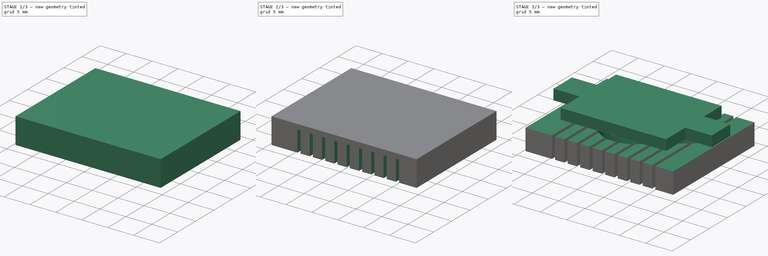
[diagram: build sequence overview — one tinted view per stage of 3, left to right]
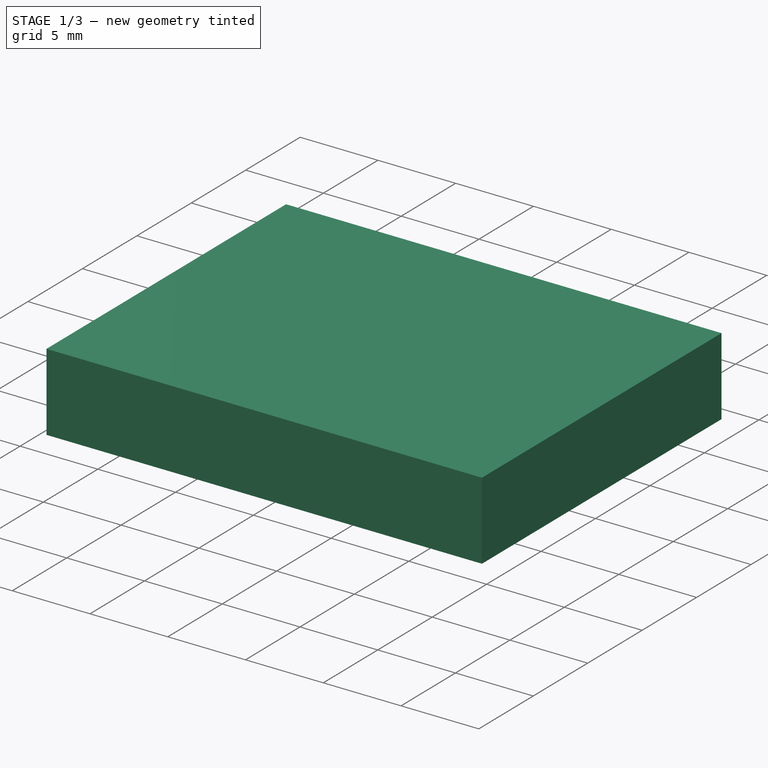
[diagram: stage 1 of 3 — iso view after this stage's code; geometry added in this stage tinted green]
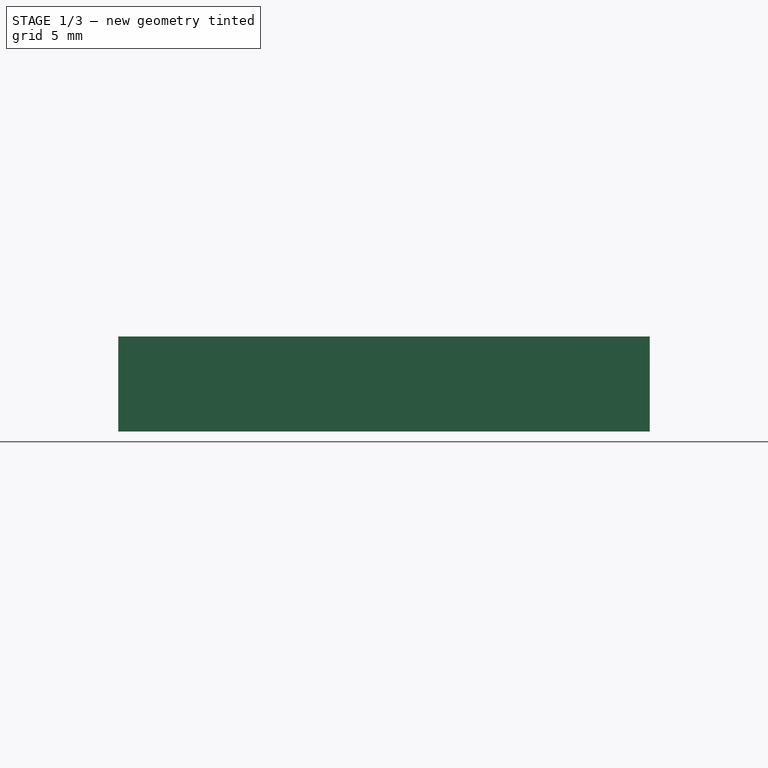
[diagram: stage 1 of 3 — front view after this stage's code; geometry added in this stage tinted green]
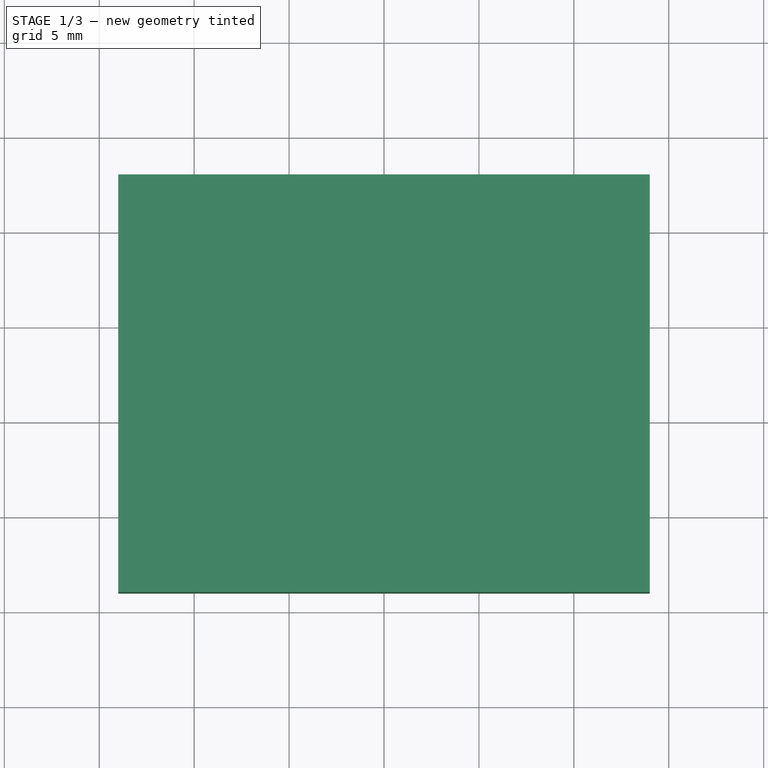
[diagram: stage 1 of 3 — top view after this stage's code; geometry added in this stage tinted green]
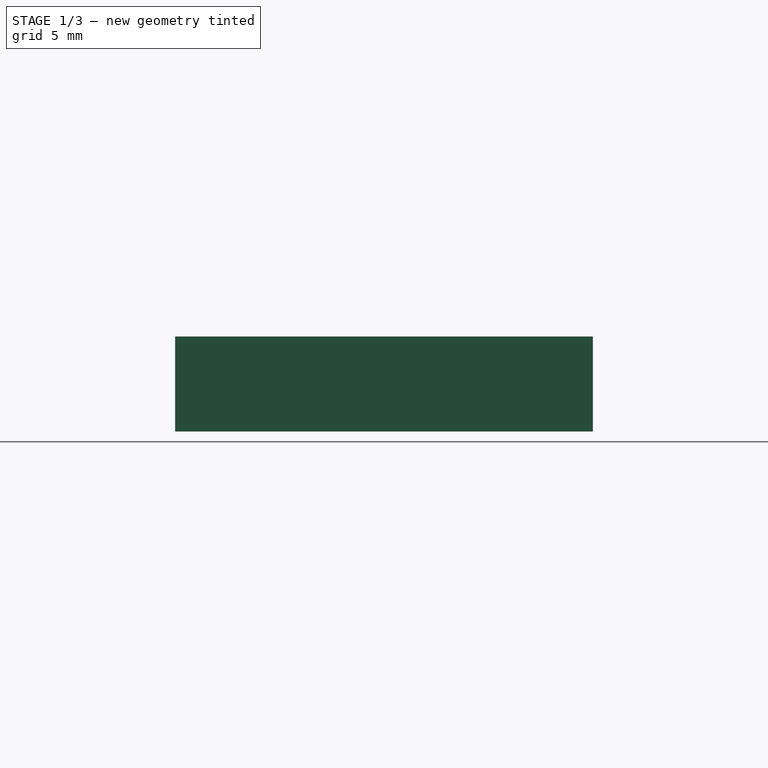
[diagram: stage 1 of 3 — right view after this stage's code; geometry added in this stage tinted green]
FCSTD DOCUMENT  (FreeCAD 0.18.1R)
Label: Slice_anchor_2.3_1.6_diasep
License: All rights reserved
LicenseURL: http://en.wikipedia.org/wiki/All_rights_reserved
objects: Sketcher::SketchObject×7, PartDesign::Pocket×4, PartDesign::Pad×2, PartDesign::LinearPattern×1, PartDesign::Body×1, App::MeasureDistance×1
note: 21 computed .brp shape members not serialized (recipe doc carries the construction recipe); baked Part::Feature solids carry a one-line shape summary decoded from their .brp

FEATURE [Sketcher::SketchObject] Sketch  label="main platform001"
  MapMode = 5
  Support = -> [XY_Plane]
  sketch-geometry (4):
    g0: LineSegment StartX=1 StartY=1 StartZ=0 EndX=29 EndY=1 EndZ=0
    g1: LineSegment StartX=29 StartY=1 StartZ=0 EndX=29 EndY=23 EndZ=0
    g2: LineSegment StartX=29 StartY=23 StartZ=0 EndX=1 EndY=23 EndZ=0
    g3: LineSegment StartX=1 StartY=23 StartZ=0 EndX=1 EndY=1 EndZ=0
  constraints (12):
    c: Coincident(g0,g1)
    c: Coincident(g1,g2)
    c: Coincident(g2,g3)
    c: Coincident(g3,g0)
    c: Horizontal(g0)
    c: Horizontal(g2)
    c: Vertical(g1)
    c: Vertical(g3)
    c: Distance(g3) = 22
    c: Distance(g0) = 28
    c: DistanceX(g-1,g0) = 1
    c: DistanceY(g-1,g0) = 1
FEATURE [Sketcher::SketchObject] Sketch001  label="main chamber001"
  MapMode = 5
  Support = -> [XY_Plane]
  sketch-geometry (8):
    g0: ArcOfCircle CenterX=15 CenterY=14.5 CenterZ=0 NormalX=0 NormalY=0 NormalZ=1 AngleXU=0 Radius=6 StartAngle=1.05337 EndAngle=2.10057
    g1: ArcOfCircle CenterX=15 CenterY=10.25 CenterZ=0 NormalX=0 NormalY=0 NormalZ=1 AngleXU=0 Radius=6 StartAngle=4.25121 EndAngle=5.29841
    g2: ArcOfCircle CenterX=5.75 CenterY=12.5 CenterZ=0 NormalX=0 NormalY=0 NormalZ=1 AngleXU=0 Radius=2 StartAngle=2.59976 EndAngle=3.64695
    g3: ArcOfCircle CenterX=24.25 CenterY=12.5 CenterZ=0 NormalX=0 NormalY=0 NormalZ=1 AngleXU=0 Radius=2 StartAngle=5.77782 EndAngle=6.82502
    g4: LineSegment StartX=11.968 StartY=19.6775 StartZ=0 EndX=4.03647 EndY=13.5314 EndZ=0
    g5: LineSegment StartX=4 StartY=11.5318 StartZ=0 EndX=12.33 EndY=4.87682 EndZ=0
    g6: LineSegment StartX=18.3183 StartY=5.25112 StartZ=0 EndX=26 EndY=11.5318 EndZ=0
    g7: LineSegment StartX=25.9635 StartY=13.5314 StartZ=0 EndX=17.9679 EndY=19.7146 EndZ=0
  constraints (27):
    c: DistanceX(g-1,g0) = 15
    c: Vertical(g0,g1)
    c: Radius(g0) = 6
    c: Equal(g0,g1)
    c: Angle(g0) = 1.0472
    c: Angle(g1) = 1.0472
    c: DistanceY(g1,g0) = 4.25
    c: DistanceY(g-1,g1) = 10.25
    c: DistanceX(g2,g3) = 18.5
    c: Radius(g2) = 2
    c: Equal(g2,g3)
    c: Angle(g3) = 1.0472
    c: Angle(g2) = 1.0472
    c: Horizontal(g3,g2)
    c: Horizontal(g2,g3)
    c: DistanceY(g-1,g2) = 12.5
    c: DistanceX(g-1,g2) = 5.75
    c: Coincident(g4,g0)
    c: Coincident(g4,g2)
    c: Coincident(g5,g2)
    c: Coincident(g5,g1)
    c: Coincident(g6,g1)
    c: Coincident(g6,g3)
    c: Coincident(g7,g3)
    c: Coincident(g7,g0)
    c: DistanceX(g-1,g1) = 12.33
    c: DistanceX(g-1,g2) = 4
FEATURE [PartDesign::Pad] Pad002  label="main platform"
  Length = 5
  Length2 = 100
  Profile = -> Sketch
  Type = 0
FEATURE [PartDesign::Pocket] Pocket001  label="main chamber"
  BaseFeature = -> Pad002
  Length = 0.8
  Length2 = 100
  Profile = -> Sketch001
  Reversed = true
  Type = 0
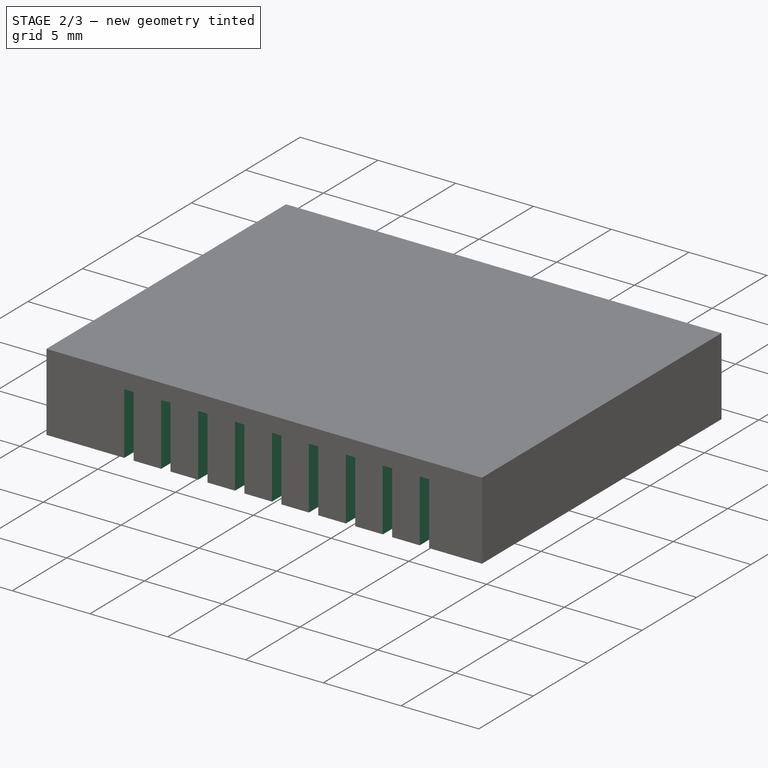
[diagram: stage 2 of 3 — iso view after this stage's code; geometry added in this stage tinted green]
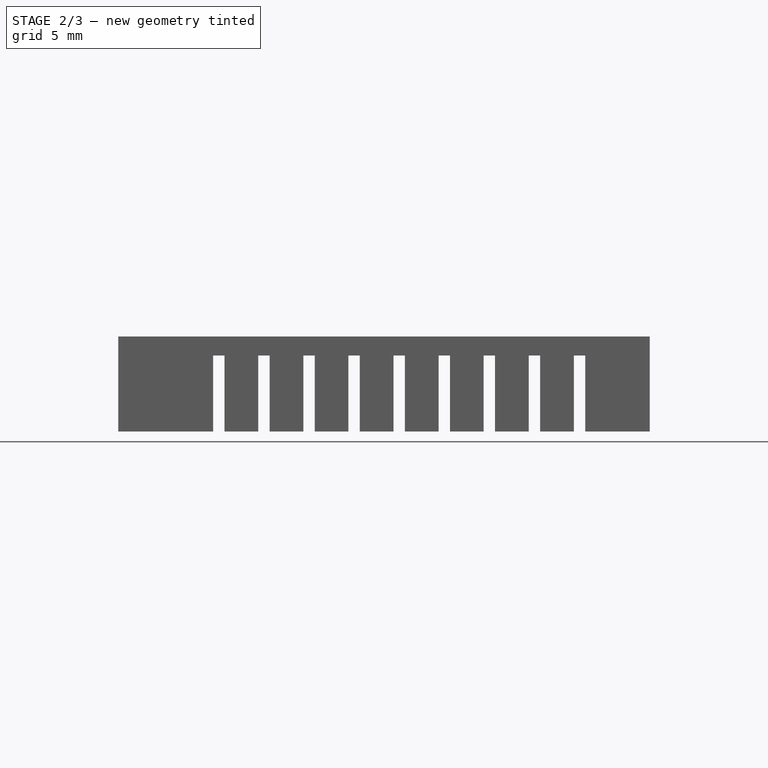
[diagram: stage 2 of 3 — front view after this stage's code; geometry added in this stage tinted green]
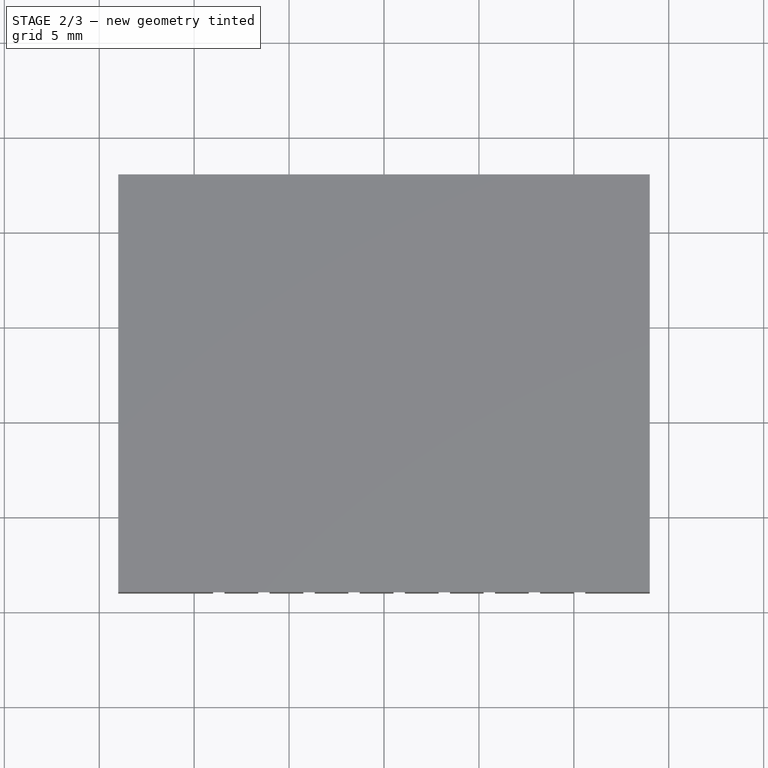
[diagram: stage 2 of 3 — top view after this stage's code; geometry added in this stage tinted green]
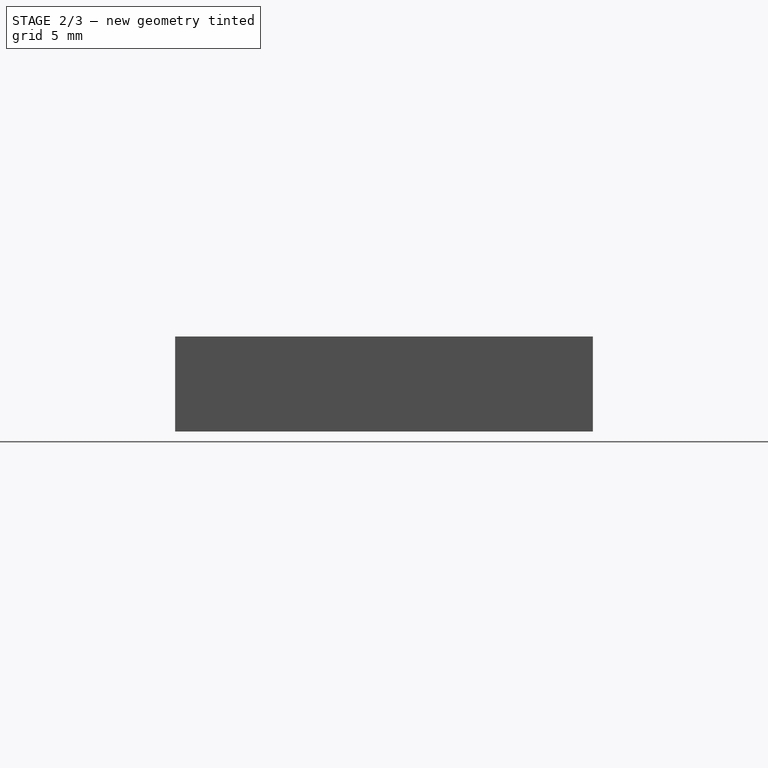
[diagram: stage 2 of 3 — right view after this stage's code; geometry added in this stage tinted green]
FEATURE [Sketcher::SketchObject] Sketch002
  MapMode = 5
  Support = -> [XY_Plane]
  sketch-geometry (4):
    g0: LineSegment StartX=6 StartY=23 StartZ=0 EndX=6.6 EndY=23 EndZ=0
    g1: LineSegment StartX=6.6 StartY=23 StartZ=0 EndX=6.6 EndY=0 EndZ=0
    g2: LineSegment StartX=6.6 StartY=0 StartZ=0 EndX=6 EndY=0 EndZ=0
    g3: LineSegment StartX=6 StartY=0 StartZ=0 EndX=6 EndY=23 EndZ=0
  constraints (12):
    c: Coincident(g0,g1)
    c: Coincident(g1,g2)
    c: Coincident(g2,g3)
    c: Coincident(g3,g0)
    c: Horizontal(g0)
    c: Horizontal(g2)
    c: Vertical(g1)
    c: Vertical(g3)
    c: DistanceX(g2,g1) = 0.6
    c: DistanceX(g-1,g2) = 6
    c: DistanceY(g-1,g2) = 0
    c: DistanceY(g-1,g0) = 23
FEATURE [PartDesign::Pocket] Pocket
  BaseFeature = -> Pocket001
  Length = 4
  Length2 = 100
  Profile = -> Sketch002
  Reversed = true
  Type = 0
FEATURE [PartDesign::LinearPattern] LinearPattern
  BaseFeature = -> Pocket
  Direction = -> X_Axis
  Length = 19
  Occurrences = 9
  Originals = -> [Pocket]
FEATURE [Sketcher::SketchObject] Sketch003  label="main chamber002"
  AttachmentOffset = pos=(0.5,0,4) rot=(0,1,0;0.785398rad)
  MapMode = 5
  Placement = pos=(0.5,0,4) rot=(0,1,0;0.785398rad)
  Support = -> [XY_Plane]
  sketch-geometry (8):
    g0: ArcOfCircle CenterX=15 CenterY=14 CenterZ=0 NormalX=0 NormalY=0 NormalZ=1 AngleXU=0 Radius=6 StartAngle=1.05366 EndAngle=2.10086
    g1: ArcOfCircle CenterX=15 CenterY=10.75 CenterZ=0 NormalX=0 NormalY=0 NormalZ=1 AngleXU=0 Radius=6 StartAngle=4.25121 EndAngle=5.29841
    g2: ArcOfCircle CenterX=5.75 CenterY=12.5 CenterZ=0 NormalX=0 NormalY=0 NormalZ=1 AngleXU=0 Radius=2 StartAngle=2.59976 EndAngle=3.64695
    g3: ArcOfCircle CenterX=24.25 CenterY=12.5 CenterZ=0 NormalX=0 NormalY=0 NormalZ=1 AngleXU=0 Radius=2 StartAngle=5.77782 EndAngle=6.82502
    g4: LineSegment StartX=11.9665 StartY=19.1767 StartZ=0 EndX=4.03647 EndY=13.5314 EndZ=0
    g5: LineSegment StartX=4 StartY=11.5318 StartZ=0 EndX=12.33 EndY=5.37682 EndZ=0
    g6: LineSegment StartX=18.3183 StartY=5.75112 StartZ=0 EndX=26 EndY=11.5318 EndZ=0
    g7: LineSegment StartX=25.9635 StartY=13.5314 StartZ=0 EndX=17.9664 EndY=19.2154 EndZ=0
  constraints (27):
    c: DistanceX(g-1,g0) = 15
    c: Vertical(g0,g1)
    c: Radius(g0) = 6
    c: Equal(g0,g1)
    c: Angle(g0) = 1.0472
    c: Angle(g1) = 1.0472
    c: DistanceY(g1,g0) = 3.25
    c: DistanceY(g-1,g1) = 10.75
    c: DistanceX(g2,g3) = 18.5
    c: Radius(g2) = 2
    c: Equal(g2,g3)
    c: Angle(g3) = 1.0472
    c: Angle(g2) = 1.0472
    c: Horizontal(g3,g2)
    c: Horizontal(g2,g3)
    c: DistanceY(g-1,g2) = 12.5
    c: DistanceX(g-1,g2) = 5.75
    c: Coincident(g4,g0)
    c: Coincident(g4,g2)
    c: Coincident(g5,g2)
    c: Coincident(g5,g1)
    c: Coincident(g6,g1)
    c: Coincident(g6,g3)
    c: Coincident(g7,g3)
    c: Coincident(g7,g0)
    c: DistanceX(g-1,g1) = 12.33
    c: DistanceX(g-1,g2) = 4
FEATURE [PartDesign::Pocket] Pocket002
  BaseFeature = -> LinearPattern
  Length = 3.5
  Length2 = 100
  Profile = -> Sketch003
  Reversed = true
  Type = 0
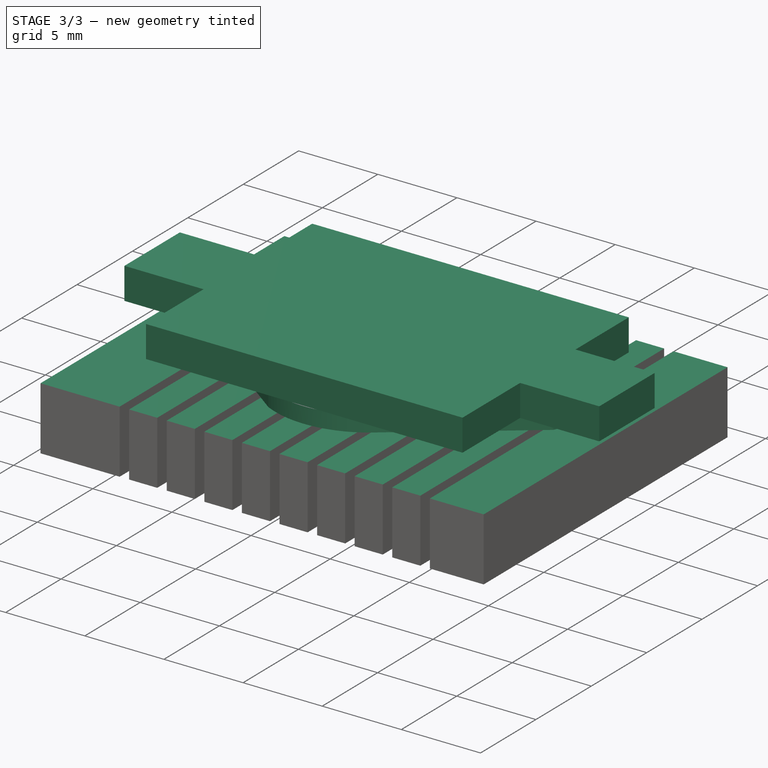
[diagram: stage 3 of 3 — iso view after this stage's code; geometry added in this stage tinted green]
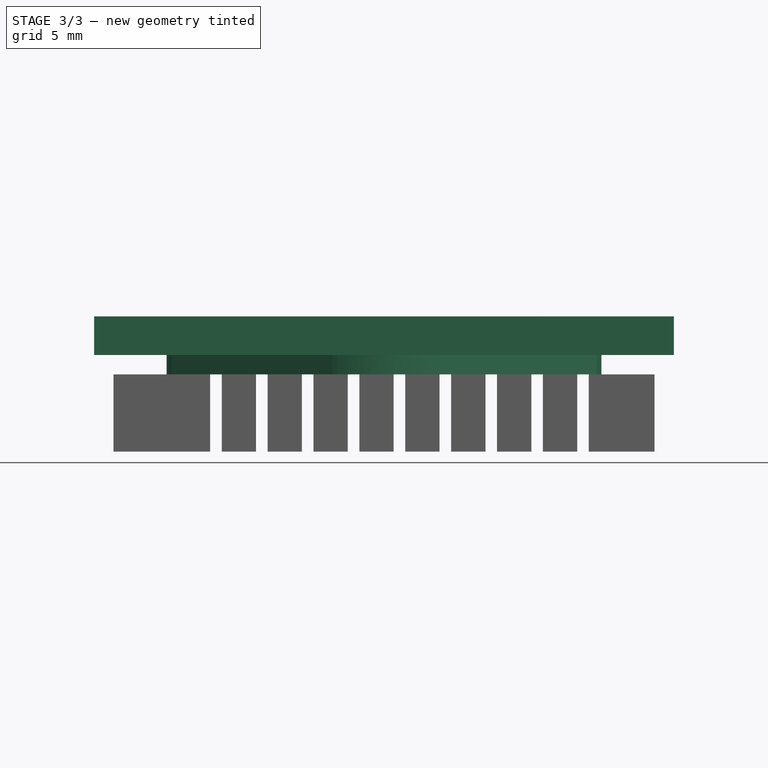
[diagram: stage 3 of 3 — front view after this stage's code; geometry added in this stage tinted green]
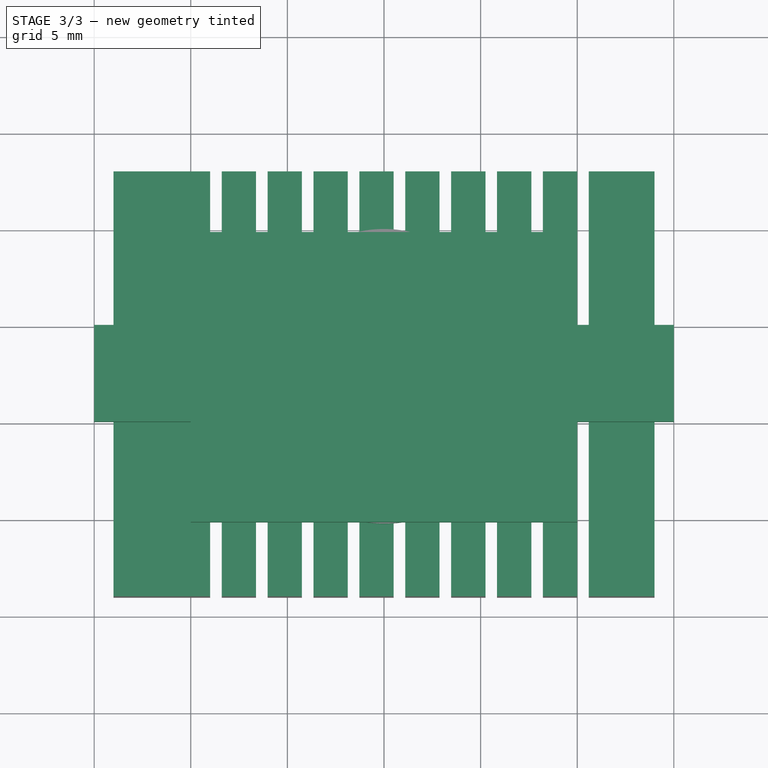
[diagram: stage 3 of 3 — top view after this stage's code; geometry added in this stage tinted green]
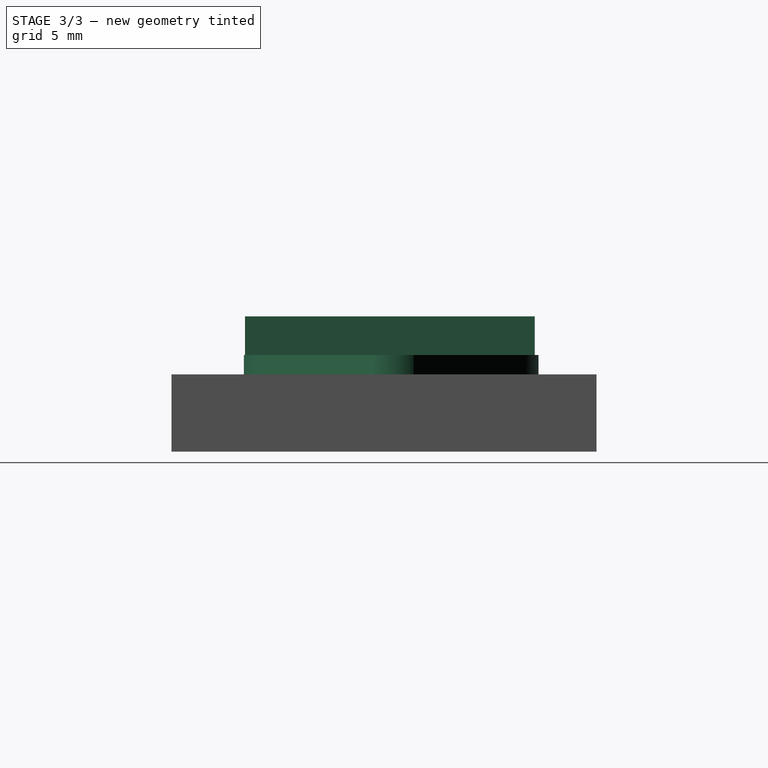
[diagram: stage 3 of 3 — right view after this stage's code; geometry added in this stage tinted green]
FEATURE [Sketcher::SketchObject] Sketch004
  AttachmentOffset = pos=(0,0,5) rot=(0,0,1;0rad)
  MapMode = 5
  Placement = pos=(0,0,5) rot=(0,0,1;0rad)
  Support = -> [XY_Plane]
  sketch-geometry (12):
    g0: LineSegment StartX=5 StartY=19.805 StartZ=0 EndX=25 EndY=19.805 EndZ=0
    g1: LineSegment StartX=25 StartY=4.805 StartZ=0 EndX=5 EndY=4.805 EndZ=0
    g2: LineSegment StartX=25 StartY=15 StartZ=0 EndX=30 EndY=15 EndZ=0
    g3: LineSegment StartX=30 StartY=15 StartZ=0 EndX=30 EndY=10 EndZ=0
    g4: LineSegment StartX=30 StartY=10 StartZ=0 EndX=25 EndY=10 EndZ=0
    g5: LineSegment StartX=5 StartY=15 StartZ=0 EndX=0 EndY=15 EndZ=0
    g6: LineSegment StartX=0 StartY=15 StartZ=0 EndX=0 EndY=10 EndZ=0
    g7: LineSegment StartX=0 StartY=10 StartZ=0 EndX=5 EndY=10 EndZ=0
    g8: LineSegment StartX=5 StartY=10 StartZ=0 EndX=5 EndY=4.805 EndZ=0
    g9: LineSegment StartX=5 StartY=15 StartZ=0 EndX=5 EndY=19.805 EndZ=0
    g10: LineSegment StartX=25 StartY=19.805 StartZ=0 EndX=25 EndY=15 EndZ=0
    g11: LineSegment StartX=25 StartY=10 StartZ=0 EndX=25 EndY=4.805 EndZ=0
  constraints (36):
    c: Horizontal(g0)
    c: Horizontal(g1)
    c: DistanceX(g-1,g1) = 5
    c: DistanceX(g1,g1) = 20
    c: DistanceY(g1,g0) = 15
    c: DistanceY(g-1,g1) = 4.805
    c: Coincident(g2,g3)
    c: Coincident(g3,g4)
    c: Horizontal(g2)
    c: Horizontal(g4)
    c: Vertical(g3)
    c: DistanceX(g-1,g3) = 30
    c: DistanceY(g3,g2) = 5
    c: DistanceY(g-1,g4) = 10
    c: Coincident(g5,g6)
    c: Coincident(g6,g7)
    c: Horizontal(g5)
    c: Horizontal(g7)
    c: Vertical(g6)
    c: DistanceY(g-1,g6) = 10
    c: DistanceY(g6,g5) = 5
    c: DistanceX(g-1,g6) = 0
    c: Coincident(g8,g7)
    c: Coincident(g8,g1)
    c: Vertical(g8)
    c: Coincident(g9,g0)
    c: Vertical(g9)
    c: Coincident(g10,g0)
    c: Coincident(g10,g2)
    c: Vertical(g10)
    c: Coincident(g11,g4)
    c: Coincident(g11,g1)
    c: DistanceX(g5,g0) = 5
    c: DistanceX(g0,g2) = 5
    c: Coincident(g9,g5)
    c: DistanceX(g-1,g4) = 25
FEATURE [Sketcher::SketchObject] Sketch005
  AttachmentOffset = pos=(0,0,5) rot=(0,0,1;0rad)
  MapMode = 5
  Placement = pos=(0,0,5) rot=(0,0,1;0rad)
  Support = -> [XY_Plane]
  sketch-geometry (16):
    g0: LineSegment StartX=8 StartY=17 StartZ=0 EndX=20 EndY=17 EndZ=0
    g1: LineSegment StartX=20 StartY=5 StartZ=0 EndX=8 EndY=5 EndZ=0
    g2: LineSegment StartX=20 StartY=13 StartZ=0 EndX=26 EndY=13 EndZ=0
    g3: LineSegment StartX=26 StartY=13 StartZ=0 EndX=26 EndY=10 EndZ=0
    g4: LineSegment StartX=8 StartY=13 StartZ=0 EndX=2 EndY=13 EndZ=0
    g5: LineSegment StartX=2 StartY=13 StartZ=0 EndX=2 EndY=10 EndZ=0
    g6: LineSegment StartX=2 StartY=10 StartZ=0 EndX=8 EndY=10 EndZ=0
    g7: LineSegment StartX=8 StartY=10 StartZ=0 EndX=8 EndY=5 EndZ=0
    g8: LineSegment StartX=8 StartY=13 StartZ=0 EndX=8 EndY=17 EndZ=0
    g9: LineSegment StartX=20 StartY=17 StartZ=0 EndX=20 EndY=13 EndZ=0
    g10: LineSegment StartX=0 StartY=0 StartZ=0 EndX=30 EndY=0 EndZ=0
    g11: LineSegment StartX=30 StartY=0 StartZ=0 EndX=30 EndY=23 EndZ=0
    g12: LineSegment StartX=30 StartY=23 StartZ=0 EndX=0 EndY=23 EndZ=0
    g13: LineSegment StartX=0 StartY=23 StartZ=0 EndX=0 EndY=0 EndZ=0
    g14: LineSegment StartX=20 StartY=5 StartZ=0 EndX=20 EndY=10 EndZ=0
    g15: LineSegment StartX=20 StartY=10 StartZ=0 EndX=26 EndY=10 EndZ=0
  constraints (44):
    c: Horizontal(g0)
    c: Horizontal(g1)
    c: DistanceX(g-1,g1) = 8
    c: DistanceX(g1,g1) = 12
    c: DistanceY(g1,g0) = 12
    c: DistanceY(g-1,g1) = 5
    c: Coincident(g2,g3)
    c: Horizontal(g2)
    c: Vertical(g3)
    c: DistanceX(g-1,g3) = 26
    c: DistanceY(g3,g2) = 3
    c: Coincident(g4,g5)
    c: Coincident(g5,g6)
    c: Horizontal(g4)
    c: Horizontal(g6)
    c: Vertical(g5)
    c: DistanceY(g-1,g5) = 10
    c: DistanceY(g5,g4) = 3
    c: DistanceX(g-1,g5) = 2
    c: Coincident(g7,g6)
    c: Coincident(g7,g1)
    c: Vertical(g7)
    c: Coincident(g8,g0)
    c: Vertical(g8)
    c: Coincident(g9,g0)
    c: Coincident(g9,g2)
    c: Vertical(g9)
    c: DistanceX(g0,g2) = 6
    c: Coincident(g8,g4)
    c: Coincident(g10,g11)
    c: Coincident(g11,g12)
    c: Coincident(g12,g13)
    c: Coincident(g13,g10)
    c: Horizontal(g10)
    c: Horizontal(g12)
    c: Vertical(g11)
    c: Vertical(g13)
    c: Coincident(g10,g-1)
    c: DistanceX(g10,g11) = 30
    c: Coincident(g14,g1)
    c: Vertical(g14)
    c: Coincident(g15,g14)
    c: Coincident(g15,g3)
    c: Horizontal(g15)
FEATURE [Sketcher::SketchObject] Sketch006  label="main chamber003"
  AttachmentOffset = pos=(0,0,5) rot=(0,0,1;0rad)
  MapMode = 5
  Placement = pos=(0,0,5) rot=(0,0,1;0rad)
  Support = -> [XY_Plane]
  sketch-geometry (12):
    g0: ArcOfCircle CenterX=15 CenterY=14 CenterZ=0 NormalX=0 NormalY=0 NormalZ=1 AngleXU=0 Radius=6 StartAngle=1.05366 EndAngle=2.10086
    g1: ArcOfCircle CenterX=15 CenterY=10.75 CenterZ=0 NormalX=0 NormalY=0 NormalZ=1 AngleXU=0 Radius=6 StartAngle=4.25121 EndAngle=5.29841
    g2: ArcOfCircle CenterX=5.75 CenterY=12.5 CenterZ=0 NormalX=0 NormalY=0 NormalZ=1 AngleXU=0 Radius=2 StartAngle=2.59976 EndAngle=3.64695
    g3: ArcOfCircle CenterX=24.25 CenterY=12.5 CenterZ=0 NormalX=0 NormalY=0 NormalZ=1 AngleXU=0 Radius=2 StartAngle=5.77782 EndAngle=6.82502
    g4: LineSegment StartX=11.9665 StartY=19.1767 StartZ=0 EndX=4.03647 EndY=13.5314 EndZ=0
    g5: LineSegment StartX=4 StartY=11.5318 StartZ=0 EndX=12.33 EndY=5.37682 EndZ=0
    g6: LineSegment StartX=18.3183 StartY=5.75112 StartZ=0 EndX=26 EndY=11.5318 EndZ=0
    g7: LineSegment StartX=25.9635 StartY=13.5314 StartZ=0 EndX=17.9664 EndY=19.2154 EndZ=0
    g8: LineSegment StartX=1 StartY=1 StartZ=0 EndX=29 EndY=1 EndZ=0
    g9: LineSegment StartX=29 StartY=1 StartZ=0 EndX=29 EndY=23 EndZ=0
    g10: LineSegment StartX=29 StartY=23 StartZ=0 EndX=1 EndY=23 EndZ=0
    g11: LineSegment StartX=1 StartY=23 StartZ=0 EndX=1 EndY=1 EndZ=0
  constraints (39):
    c: DistanceX(g-1,g0) = 15
    c: Vertical(g0,g1)
    c: Radius(g0) = 6
    c: Equal(g0,g1)
    c: Angle(g0) = 1.0472
    c: Angle(g1) = 1.0472
    c: DistanceY(g1,g0) = 3.25
    c: DistanceY(g-1,g1) = 10.75
    c: DistanceX(g2,g3) = 18.5
    c: Radius(g2) = 2
    c: Equal(g2,g3)
    c: Angle(g3) = 1.0472
    c: Angle(g2) = 1.0472
    c: Horizontal(g3,g2)
    c: Horizontal(g2,g3)
    c: DistanceY(g-1,g2) = 12.5
    c: DistanceX(g-1,g2) = 5.75
    c: Coincident(g4,g0)
    c: Coincident(g4,g2)
    c: Coincident(g5,g2)
    c: Coincident(g5,g1)
    c: Coincident(g6,g1)
    c: Coincident(g6,g3)
    c: Coincident(g7,g3)
    c: Coincident(g7,g0)
    c: DistanceX(g-1,g1) = 12.33
    c: DistanceX(g-1,g2) = 4
    c: Coincident(g8,g9)
    c: Coincident(g9,g10)
    c: Coincident(g10,g11)
    c: Coincident(g11,g8)
    c: Horizontal(g8)
    c: Horizontal(g10)
    c: Vertical(g9)
    c: Vertical(g11)
    c: DistanceX(g-1,g8) = 1
    c: DistanceX(g8,g8) = 28
    c: DistanceY(g-1,g8) = 1
    c: DistanceY(g8,g9) = 22
FEATURE [PartDesign::Pocket] Pocket005
  BaseFeature = -> Pocket002
  Length = 1
  Length2 = 1
  Profile = -> Sketch006
  Type = 4
FEATURE [PartDesign::Pad] Pad
  BaseFeature = -> Pocket005
  Length = 2
  Length2 = 100
  Profile = -> Sketch004
  Type = 0
FEATURE [PartDesign::Body] Body
  Group = -> [Sketch,Sketch001,Pad002,Pocket001,Sketch002,Pocket,LinearPattern,Sketch003,Pocket002,Sketch004,Sketch005,Sketch006,Pocket005,Pad]
  Origin = -> Origin
  Tip = -> Pad
FEATURE [App::MeasureDistance] Distance  label="Distance: 16.25 mm"
  Distance = 16.2492
  P1 = (14.963,20.4999,0)
  P2 = (14.9055,4.25074,0)
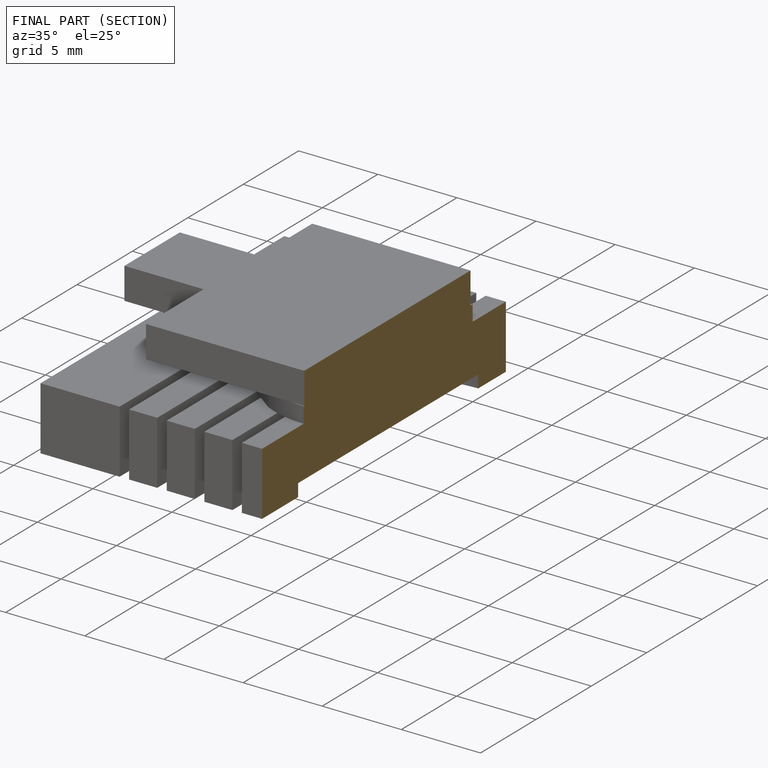
[diagram: finished part — half-section view (interior)]
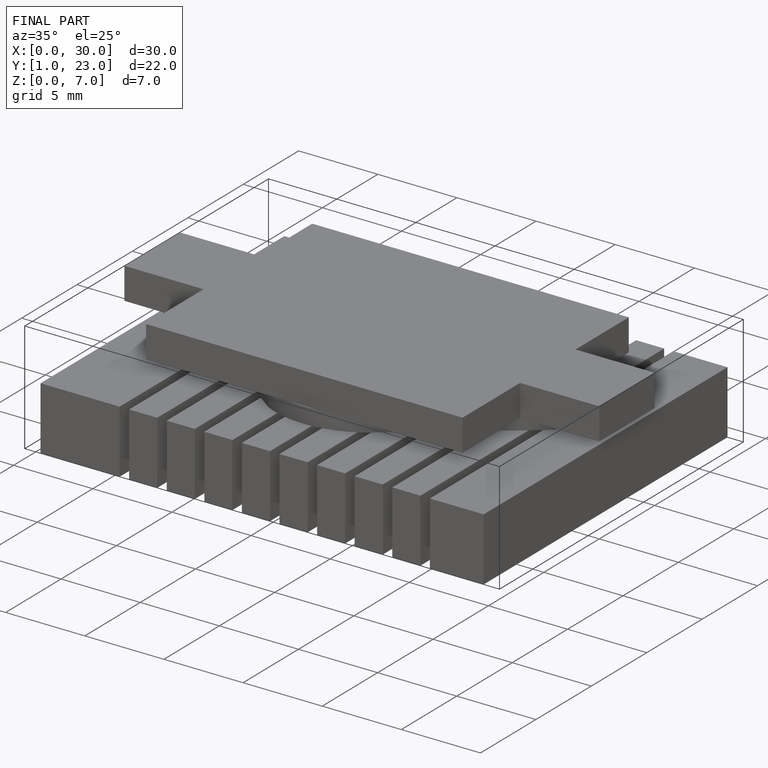
[diagram: finished part — iso view with bounding-box wireframe]
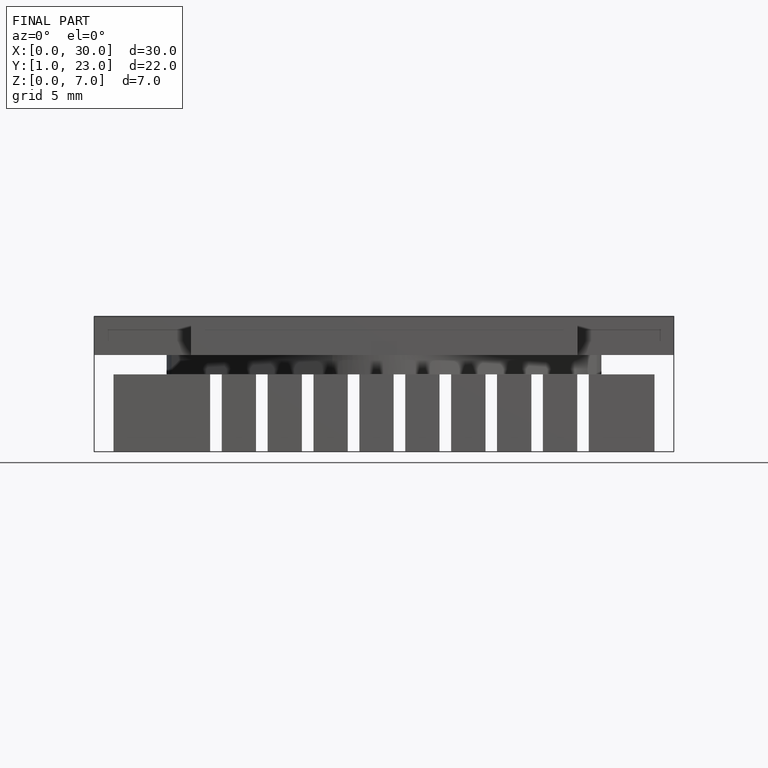
[diagram: finished part — front view with bounding-box wireframe]
